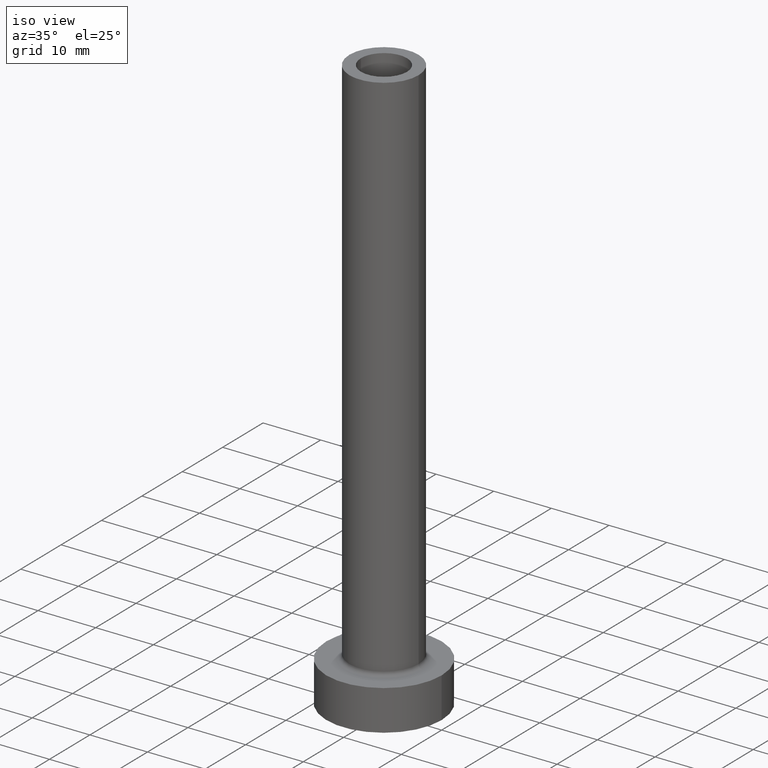
[diagram: clean part render]
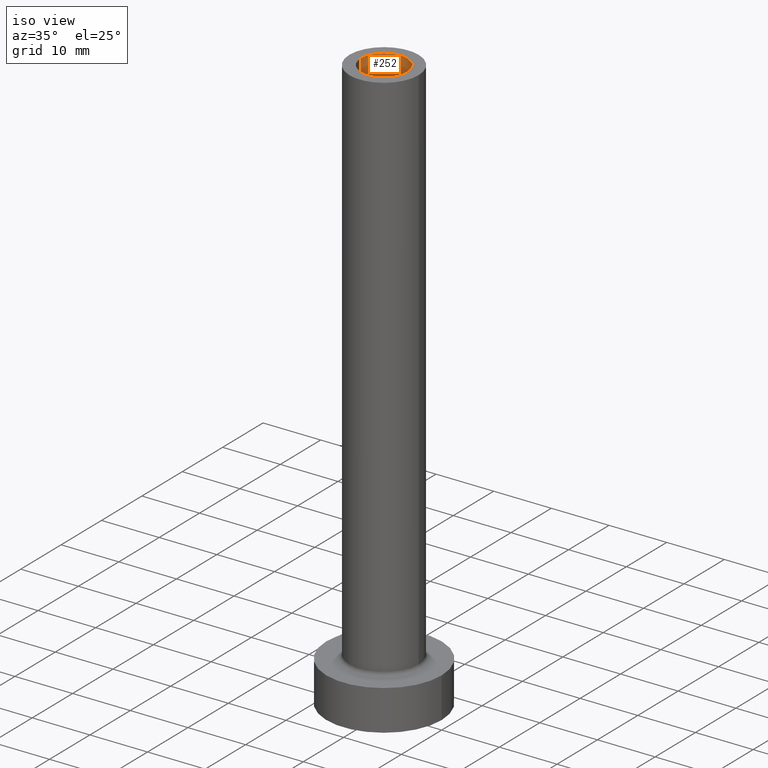
[diagram: same view with one face highlighted and labeled with its STEP entity id]
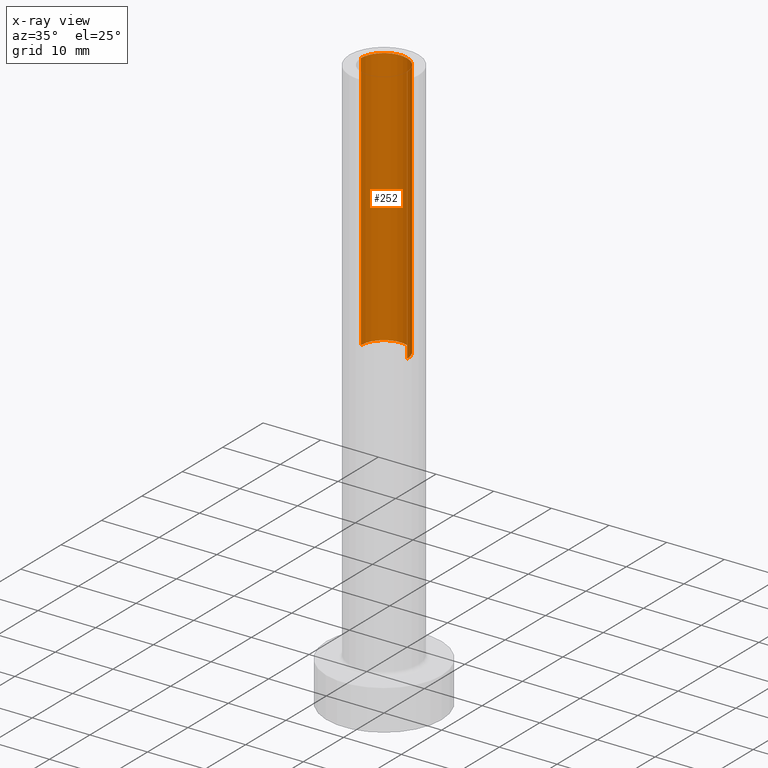
[diagram: x-ray of the same camera — body ghosted, the highlighted face saturated]
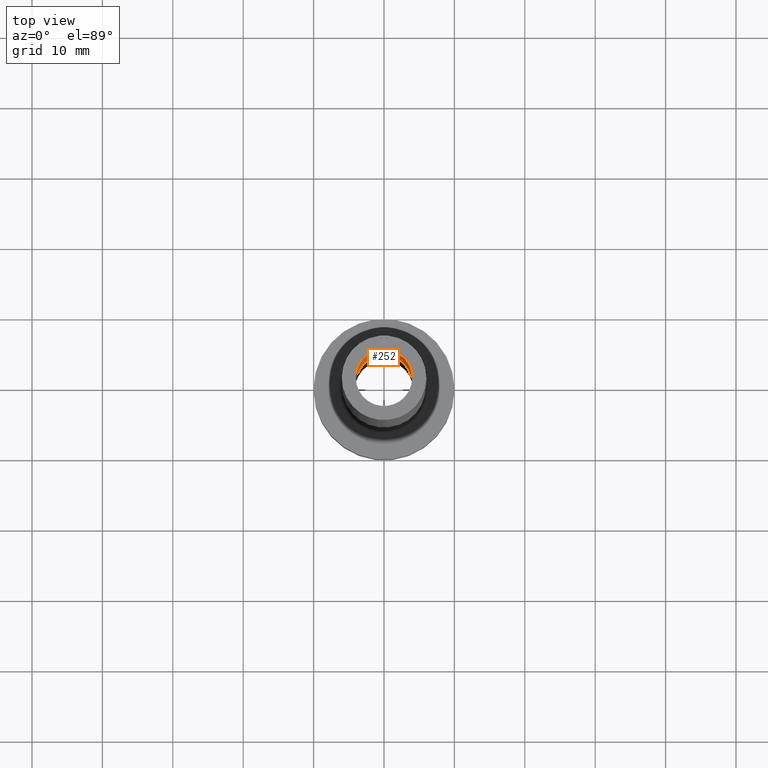
[diagram: same view with one face highlighted and labeled with its STEP entity id]
A machine part, iso view. The second image highlights one B-rep face of the part: STEP entity #252.
The next image is the same camera in x-ray: the body ghosted, the highlighted face saturated — about 0% of this face is hidden behind the body in this view.
A second angle (top view) of the same face is appended — the face is thin or edge-on in the first view.
In plain terms, the highlighted cylindrical surface (edge-blend (fillet) strip) has radius 4 mm, axis along (0, 0, -1).
Its self-contained STEP definition (entity closure, byte-faithful):
#12 = VERTEX_POINT ( 'NONE', #221 ) ;
#18 = DIRECTION ( 'NONE',  ( 0.000000000000000000, 0.000000000000000000, 1.000000000000000000 ) ) ;
#39 = CARTESIAN_POINT ( 'NONE',  ( -4.000000000000000000, 0.000000000000000000, 100.0000000000000000 ) ) ;
#43 = DIRECTION ( 'NONE',  ( 1.000000000000000000, 0.000000000000000000, 0.000000000000000000 ) ) ;
#47 = LINE ( 'NONE', #79, #250 ) ;
#53 = DIRECTION ( 'NONE',  ( 0.000000000000000000, 0.000000000000000000, -1.000000000000000000 ) ) ;
#60 = EDGE_LOOP ( 'NONE', ( #147, #426, #105, #398 ) ) ;
#79 = CARTESIAN_POINT ( 'NONE',  ( -4.000000000000000000, 0.000000000000000000, 100.0000000000000000 ) ) ;
#81 = CARTESIAN_POINT ( 'NONE',  ( 0.000000000000000000, 0.000000000000000000, 100.0000000000000000 ) ) ;
#82 = CARTESIAN_POINT ( 'NONE',  ( 0.000000000000000000, 0.000000000000000000, 100.0000000000000000 ) ) ;
#98 = VERTEX_POINT ( 'NONE', #39 ) ;
#105 = ORIENTED_EDGE ( 'NONE', *, *, #399, .T. ) ;
#115 = AXIS2_PLACEMENT_3D ( 'NONE', #82, #236, #416 ) ;
#132 = DIRECTION ( 'NONE',  ( 0.000000000000000000, 0.000000000000000000, -1.000000000000000000 ) ) ;
#134 = CARTESIAN_POINT ( 'NONE',  ( 4.000000000000000000, 4.898587196589411843E-16, 100.0000000000000000 ) ) ;
#147 = ORIENTED_EDGE ( 'NONE', *, *, #418, .F. ) ;
#179 = AXIS2_PLACEMENT_3D ( 'NONE', #81, #18, #43 ) ;
#191 = CARTESIAN_POINT ( 'NONE',  ( 4.000000000000000000, 4.898587196589411843E-16, 100.0000000000000000 ) ) ;
#196 = LINE ( 'NONE', #191, #440 ) ;
#204 = VERTEX_POINT ( 'NONE', #134 ) ;
#212 = EDGE_CURVE ( 'NONE', #204, #98, #375, .T. ) ;
#221 = CARTESIAN_POINT ( 'NONE',  ( -4.000000000000000000, 0.000000000000000000, 55.00000000000000711 ) ) ;
#226 = VERTEX_POINT ( 'NONE', #408 ) ;
#229 = AXIS2_PLACEMENT_3D ( 'NONE', #299, #303, #415 ) ;
#236 = DIRECTION ( 'NONE',  ( 0.000000000000000000, 0.000000000000000000, -1.000000000000000000 ) ) ;
#250 = VECTOR ( 'NONE', #132, 1000.000000000000000 ) ;
#252 = ADVANCED_FACE ( 'NONE', ( #407 ), #273, .F. ) ;
#273 = CYLINDRICAL_SURFACE ( 'NONE', #115, 4.000000000000000000 ) ;
#295 = CIRCLE ( 'NONE', #229, 4.000000000000000000 ) ;
#299 = CARTESIAN_POINT ( 'NONE',  ( 0.000000000000000000, 0.000000000000000000, 55.00000000000000711 ) ) ;
#303 = DIRECTION ( 'NONE',  ( 0.000000000000000000, 0.000000000000000000, 1.000000000000000000 ) ) ;
#375 = CIRCLE ( 'NONE', #179, 4.000000000000000000 ) ;
#393 = EDGE_CURVE ( 'NONE', #226, #12, #295, .T. ) ;
#398 = ORIENTED_EDGE ( 'NONE', *, *, #393, .F. ) ;
#399 = EDGE_CURVE ( 'NONE', #98, #12, #47, .T. ) ;
#407 = FACE_OUTER_BOUND ( 'NONE', #60, .T. ) ;
#408 = CARTESIAN_POINT ( 'NONE',  ( 4.000000000000000000, 4.898587196589411843E-16, 55.00000000000000711 ) ) ;
#415 = DIRECTION ( 'NONE',  ( 1.000000000000000000, 0.000000000000000000, 0.000000000000000000 ) ) ;
#416 = DIRECTION ( 'NONE',  ( -1.000000000000000000, 0.000000000000000000, 0.000000000000000000 ) ) ;
#418 = EDGE_CURVE ( 'NONE', #204, #226, #196, .T. ) ;
#426 = ORIENTED_EDGE ( 'NONE', *, *, #212, .T. ) ;
#440 = VECTOR ( 'NONE', #53, 1000.000000000000000 ) ;